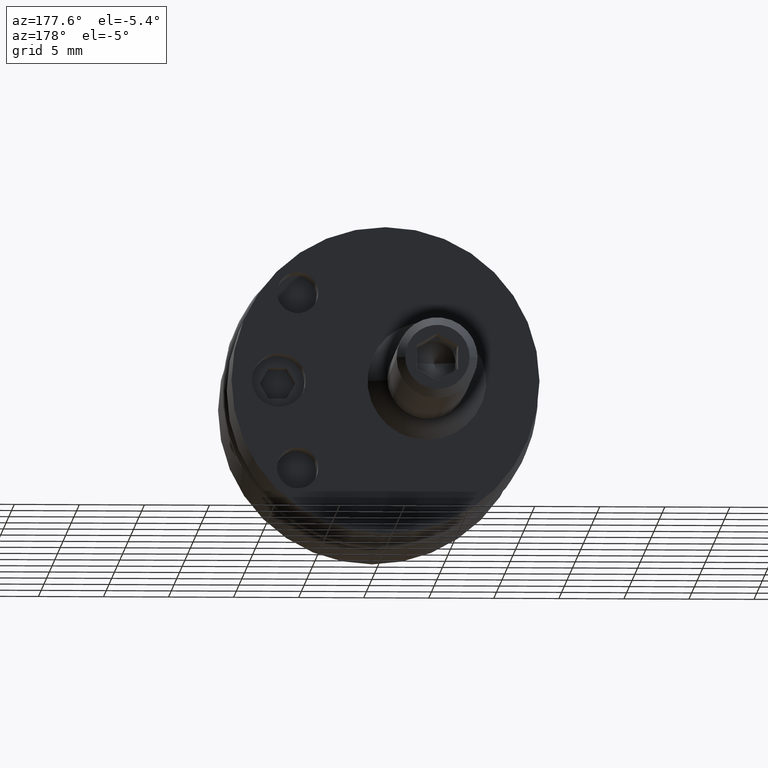
[diagram: clean part render]
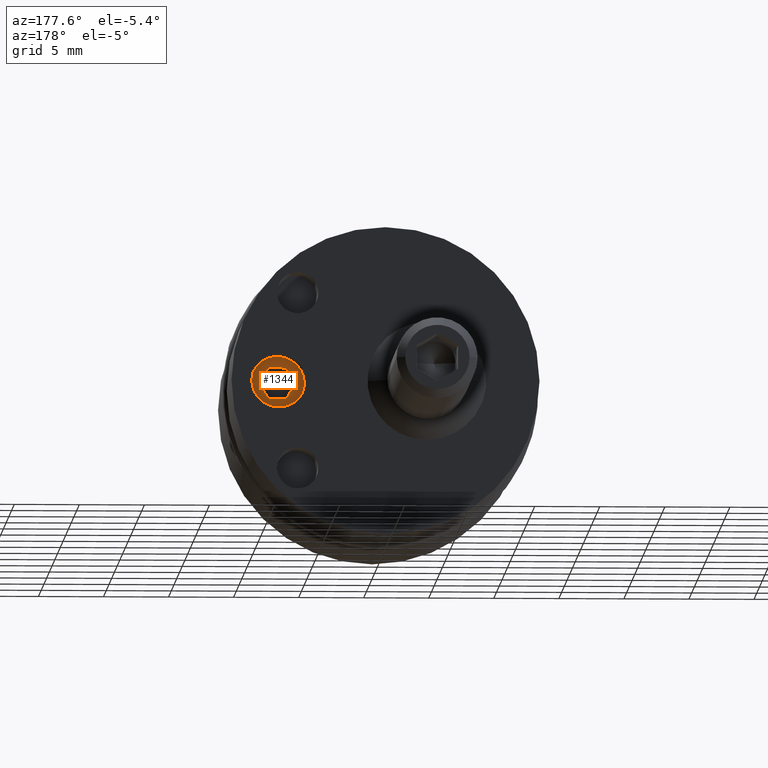
[diagram: same view with one face highlighted and labeled with its STEP entity id]
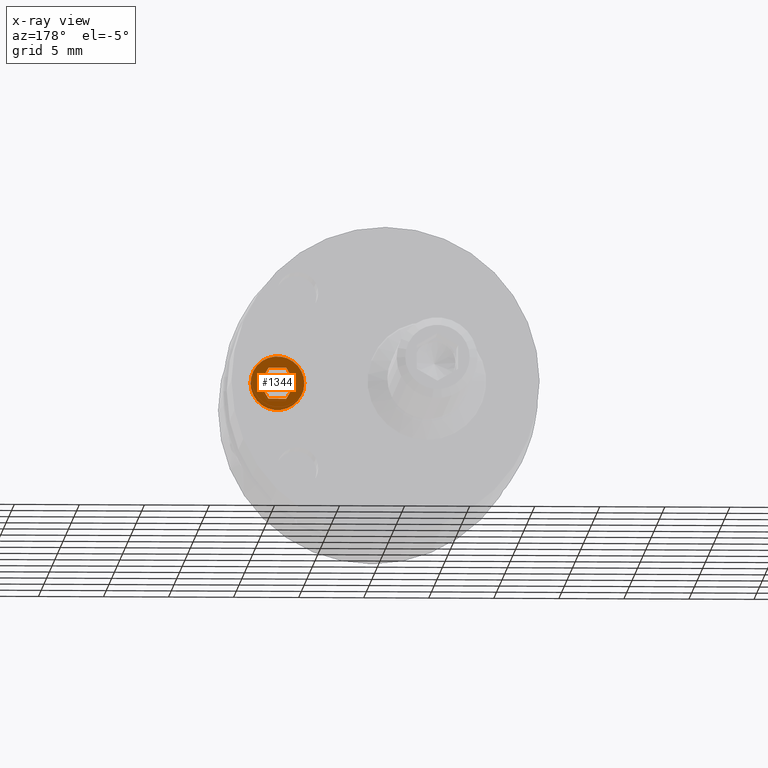
[diagram: x-ray of the same camera — body ghosted, the highlighted face saturated]
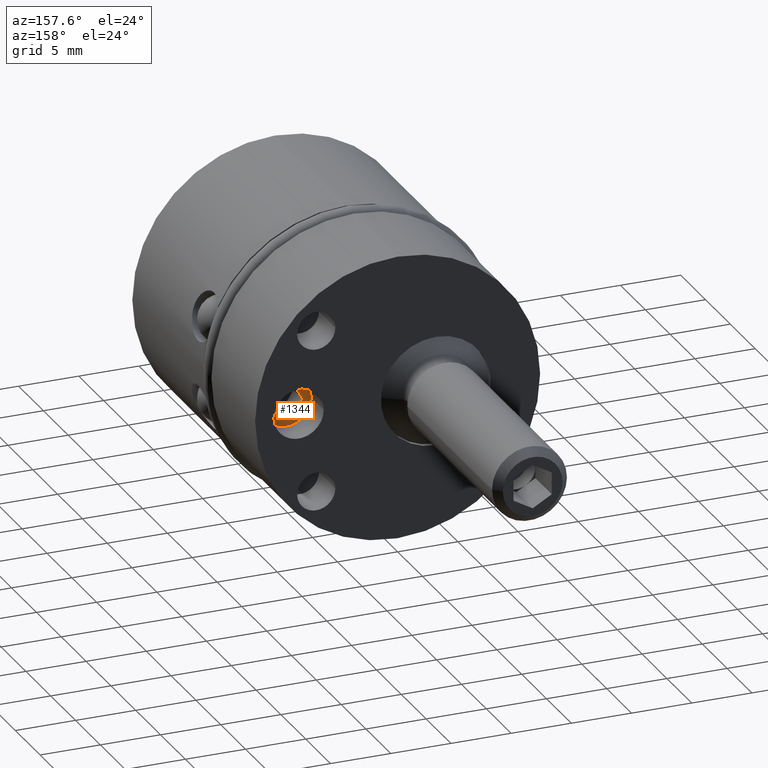
[diagram: same view with one face highlighted and labeled with its STEP entity id]
A machine part, auxiliary view. The second image highlights one B-rep face of the part: STEP entity #1344.
The next image is the same camera in x-ray: the body ghosted, the highlighted face saturated — about 0% of this face is hidden behind the body in this view.
A second angle (auxiliary view) of the same face is appended — the face is thin or edge-on in the first view.
In plain terms, the highlighted planar face has unit normal (0, -1, 0).
Its self-contained STEP definition (entity closure, byte-faithful):
#505=CARTESIAN_POINT('',(3.23E-1,8.84E-1,0.E0));
#506=DIRECTION('',(0.E0,-1.E0,0.E0));
#507=DIRECTION('',(1.E0,0.E0,0.E0));
#508=AXIS2_PLACEMENT_3D('',#505,#506,#507);
#510=CARTESIAN_POINT('',(3.23E-1,8.84E-1,0.E0));
#511=DIRECTION('',(0.E0,-1.E0,0.E0));
#512=DIRECTION('',(-1.E0,0.E0,0.E0));
#513=AXIS2_PLACEMENT_3D('',#510,#511,#512);
#515=DIRECTION('',(-1.E0,0.E0,0.E0));
#516=VECTOR('',#515,5.427092530382E-2);
#517=CARTESIAN_POINT('',(3.501354626519E-1,8.84E-1,-4.7E-2));
#518=LINE('',#517,#516);
#519=DIRECTION('',(-5.E-1,0.E0,8.660254037844E-1));
#520=VECTOR('',#519,5.427092530382E-2);
#521=CARTESIAN_POINT('',(2.958645373481E-1,8.84E-1,-4.7E-2));
#522=LINE('',#521,#520);
#523=DIRECTION('',(5.E-1,0.E0,8.660254037844E-1));
#524=VECTOR('',#523,5.427092530382E-2);
#525=CARTESIAN_POINT('',(2.687290746962E-1,8.84E-1,0.E0));
#526=LINE('',#525,#524);
#527=DIRECTION('',(1.E0,0.E0,0.E0));
#528=VECTOR('',#527,5.427092530382E-2);
#529=CARTESIAN_POINT('',(2.958645373481E-1,8.84E-1,4.7E-2));
#530=LINE('',#529,#528);
#531=DIRECTION('',(5.E-1,0.E0,-8.660254037844E-1));
#532=VECTOR('',#531,5.427092530382E-2);
#533=CARTESIAN_POINT('',(3.501354626519E-1,8.84E-1,4.7E-2));
#534=LINE('',#533,#532);
#535=DIRECTION('',(-5.E-1,0.E0,-8.660254037844E-1));
#536=VECTOR('',#535,5.427092530382E-2);
#537=CARTESIAN_POINT('',(3.772709253038E-1,8.84E-1,0.E0));
#538=LINE('',#537,#536);
#663=CARTESIAN_POINT('',(4.045E-1,8.84E-1,0.E0));
#664=CARTESIAN_POINT('',(2.415E-1,8.84E-1,0.E0));
#665=VERTEX_POINT('',#663);
#666=VERTEX_POINT('',#664);
#683=CARTESIAN_POINT('',(3.501354626519E-1,8.84E-1,-4.7E-2));
#684=CARTESIAN_POINT('',(2.958645373481E-1,8.84E-1,-4.7E-2));
#685=VERTEX_POINT('',#683);
#686=VERTEX_POINT('',#684);
#687=CARTESIAN_POINT('',(2.687290746962E-1,8.84E-1,0.E0));
#688=VERTEX_POINT('',#687);
#689=CARTESIAN_POINT('',(2.958645373481E-1,8.84E-1,4.7E-2));
#690=VERTEX_POINT('',#689);
#691=CARTESIAN_POINT('',(3.501354626519E-1,8.84E-1,4.7E-2));
#692=VERTEX_POINT('',#691);
#693=CARTESIAN_POINT('',(3.772709253038E-1,8.84E-1,0.E0));
#694=VERTEX_POINT('',#693);
#1321=CARTESIAN_POINT('',(3.23E-1,8.84E-1,0.E0));
#1322=DIRECTION('',(0.E0,-1.E0,0.E0));
#1323=DIRECTION('',(1.E0,0.E0,0.E0));
#1324=AXIS2_PLACEMENT_3D('',#1321,#1322,#1323);
#1325=PLANE('',#1324);
#1326=ORIENTED_EDGE('',*,*,#1301,.T.);
#1327=ORIENTED_EDGE('',*,*,#1315,.T.);
#1328=EDGE_LOOP('',(#1326,#1327));
#1329=FACE_OUTER_BOUND('',#1328,.F.);
#1331=ORIENTED_EDGE('',*,*,#1330,.T.);
#1333=ORIENTED_EDGE('',*,*,#1332,.T.);
#1335=ORIENTED_EDGE('',*,*,#1334,.T.);
#1337=ORIENTED_EDGE('',*,*,#1336,.T.);
#1339=ORIENTED_EDGE('',*,*,#1338,.T.);
#1341=ORIENTED_EDGE('',*,*,#1340,.T.);
#1342=EDGE_LOOP('',(#1331,#1333,#1335,#1337,#1339,#1341));
#1343=FACE_BOUND('',#1342,.F.);
#509=CIRCLE('',#508,8.15E-2);
#514=CIRCLE('',#513,8.15E-2);
#1301=EDGE_CURVE('',#665,#666,#509,.T.);
#1315=EDGE_CURVE('',#666,#665,#514,.T.);
#1330=EDGE_CURVE('',#685,#686,#518,.T.);
#1332=EDGE_CURVE('',#686,#688,#522,.T.);
#1334=EDGE_CURVE('',#688,#690,#526,.T.);
#1336=EDGE_CURVE('',#690,#692,#530,.T.);
#1338=EDGE_CURVE('',#692,#694,#534,.T.);
#1340=EDGE_CURVE('',#694,#685,#538,.T.);
#1344=ADVANCED_FACE('',(#1329,#1343),#1325,.F.);